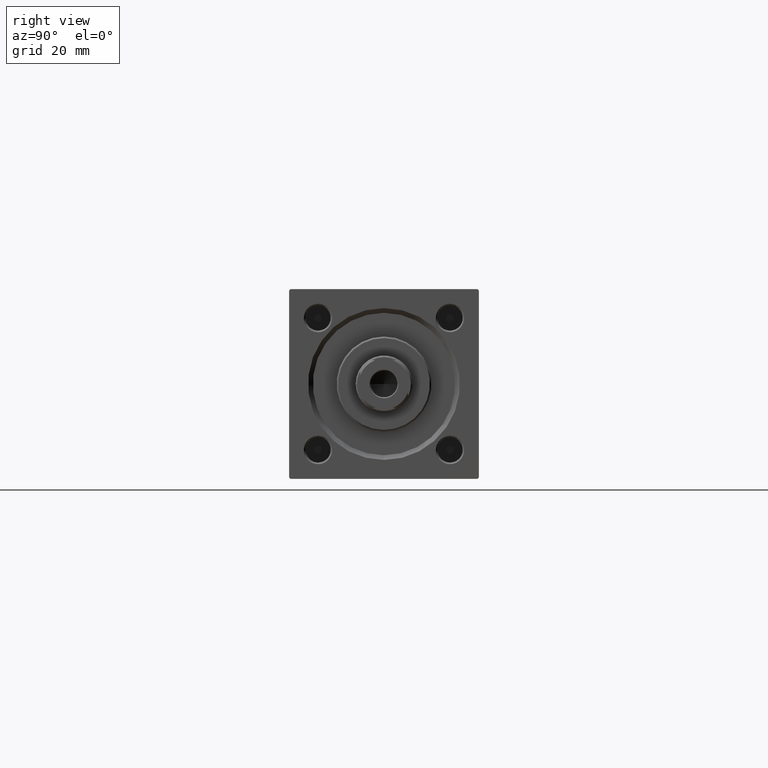
[diagram: clean part render]
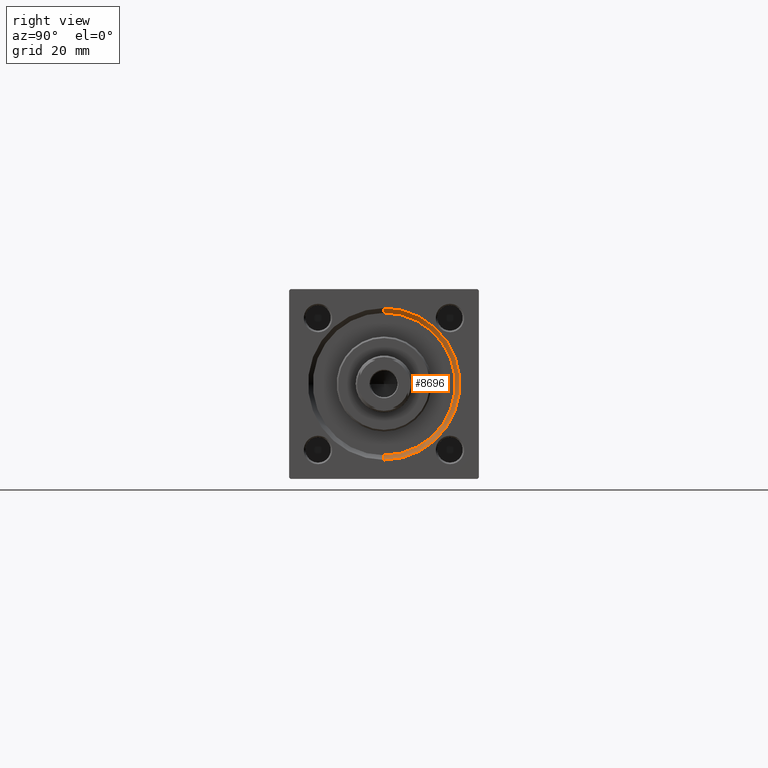
[diagram: same view with one face highlighted and labeled with its STEP entity id]
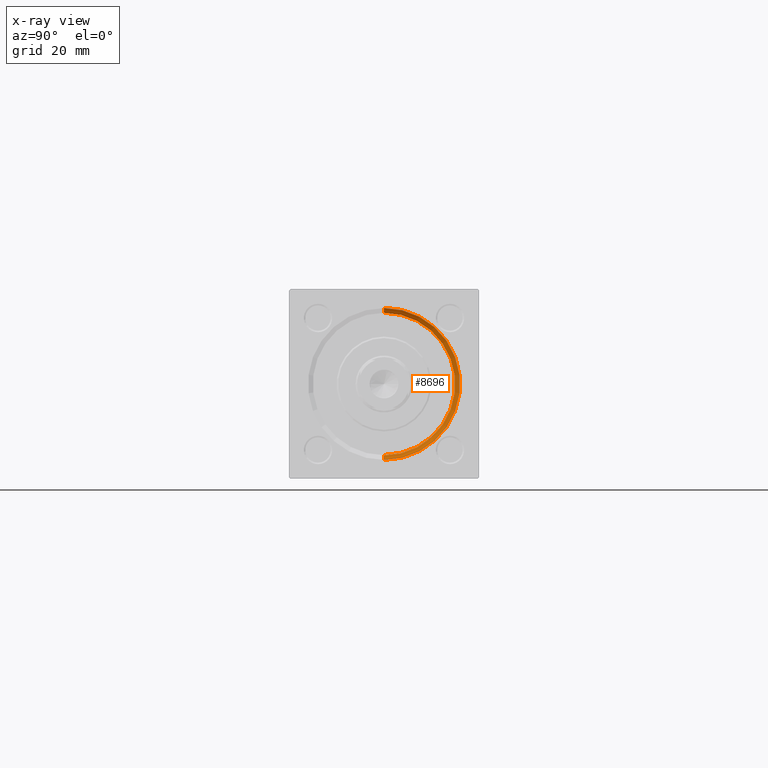
[diagram: x-ray of the same camera — body ghosted, the highlighted face saturated]
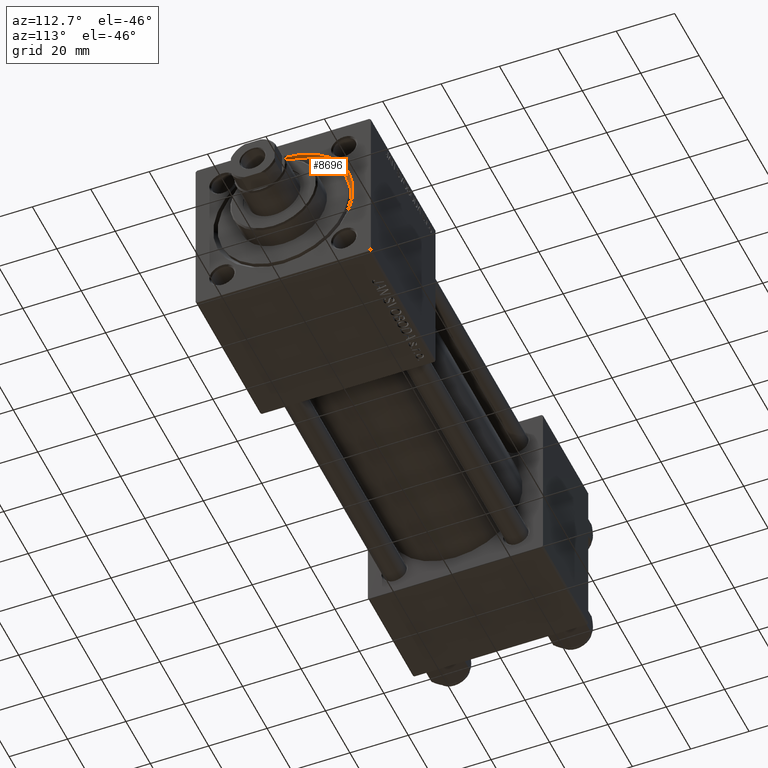
[diagram: same view with one face highlighted and labeled with its STEP entity id]
A machine part, right view. The second image highlights one B-rep face of the part: STEP entity #8696.
The next image is the same camera in x-ray: the body ghosted, the highlighted face saturated — about 0% of this face is hidden behind the body in this view.
A second angle (auxiliary view) of the same face is appended — the face is thin or edge-on in the first view.
In plain terms, the highlighted conical surface has half-angle 45 deg.
Its self-contained STEP definition (entity closure, byte-faithful):
#987 = EDGE_LOOP ( 'NONE', ( #40997, #30066, #16743, #44133 ) ) ;
#1243 = DIRECTION ( 'NONE',  ( 1.000000000000000000, 0.000000000000000000, 0.000000000000000000 ) ) ;
#2527 = VERTEX_POINT ( 'NONE', #18220 ) ;
#3446 = CARTESIAN_POINT ( 'NONE',  ( 178.0000000000000000, 0.000000000000000000, -23.99999999999999645 ) ) ;
#4634 = EDGE_CURVE ( 'NONE', #2527, #5690, #29324, .T. ) ;
#5574 = VECTOR ( 'NONE', #48403, 1000.000000000000114 ) ;
#5690 = VERTEX_POINT ( 'NONE', #41861 ) ;
#5810 = CARTESIAN_POINT ( 'NONE',  ( 178.0000000000000000, 2.939152317953647500E-15, 23.99999999999999645 ) ) ;
#8696 = ADVANCED_FACE ( 'NONE', ( #16941 ), #15277, .F. ) ;
#8780 = EDGE_CURVE ( 'NONE', #5690, #42973, #21983, .T. ) ;
#9136 = DIRECTION ( 'NONE',  ( 0.000000000000000000, 0.000000000000000000, 1.000000000000000000 ) ) ;
#10446 = CARTESIAN_POINT ( 'NONE',  ( 178.0000000000000000, 0.000000000000000000, 0.000000000000000000 ) ) ;
#11416 = EDGE_CURVE ( 'NONE', #2527, #35768, #43838, .T. ) ;
#13371 = CARTESIAN_POINT ( 'NONE',  ( 176.5000000000000000, 0.000000000000000000, -22.50000000000000355 ) ) ;
#15277 = CONICAL_SURFACE ( 'NONE', #29824, 22.50000000000000355, 0.7853981633974459475 ) ;
#16428 = AXIS2_PLACEMENT_3D ( 'NONE', #10446, #34544, #29992 ) ;
#16743 = ORIENTED_EDGE ( 'NONE', *, *, #11416, .T. ) ;
#16941 = FACE_OUTER_BOUND ( 'NONE', #987, .T. ) ;
#17198 = DIRECTION ( 'NONE',  ( 0.000000000000000000, 0.000000000000000000, -1.000000000000000000 ) ) ;
#18220 = CARTESIAN_POINT ( 'NONE',  ( 176.5000000000000000, 0.000000000000000000, -22.50000000000000355 ) ) ;
#18788 = AXIS2_PLACEMENT_3D ( 'NONE', #47717, #1243, #9136 ) ;
#20736 = CARTESIAN_POINT ( 'NONE',  ( 176.5000000000000000, 0.000000000000000000, 0.000000000000000000 ) ) ;
#21983 = LINE ( 'NONE', #33148, #32273 ) ;
#26586 = EDGE_CURVE ( 'NONE', #42973, #35768, #43156, .T. ) ;
#28340 = DIRECTION ( 'NONE',  ( 1.000000000000000000, 0.000000000000000000, 0.000000000000000000 ) ) ;
#29324 = CIRCLE ( 'NONE', #18788, 22.50000000000000355 ) ;
#29824 = AXIS2_PLACEMENT_3D ( 'NONE', #20736, #28340, #17198 ) ;
#29992 = DIRECTION ( 'NONE',  ( 0.000000000000000000, 0.000000000000000000, 1.000000000000000000 ) ) ;
#30066 = ORIENTED_EDGE ( 'NONE', *, *, #4634, .F. ) ;
#32273 = VECTOR ( 'NONE', #48402, 1000.000000000000114 ) ;
#33148 = CARTESIAN_POINT ( 'NONE',  ( 176.5000000000000000, 2.755455298081545172E-15, 22.50000000000000355 ) ) ;
#34544 = DIRECTION ( 'NONE',  ( -1.000000000000000000, 0.000000000000000000, -0.000000000000000000 ) ) ;
#35768 = VERTEX_POINT ( 'NONE', #3446 ) ;
#40997 = ORIENTED_EDGE ( 'NONE', *, *, #8780, .F. ) ;
#41861 = CARTESIAN_POINT ( 'NONE',  ( 176.5000000000000000, 2.755455298081545172E-15, 22.50000000000000355 ) ) ;
#42973 = VERTEX_POINT ( 'NONE', #5810 ) ;
#43156 = CIRCLE ( 'NONE', #16428, 23.99999999999999645 ) ;
#43838 = LINE ( 'NONE', #13371, #5574 ) ;
#44133 = ORIENTED_EDGE ( 'NONE', *, *, #26586, .F. ) ;
#47717 = CARTESIAN_POINT ( 'NONE',  ( 176.5000000000000000, 0.000000000000000000, 0.000000000000000000 ) ) ;
#48402 = DIRECTION ( 'NONE',  ( 0.7071067811865491270, 8.659560562354911904E-17, 0.7071067811865459074 ) ) ;
#48403 = DIRECTION ( 'NONE',  ( 0.7071067811865491270, 0.000000000000000000, -0.7071067811865459074 ) ) ;